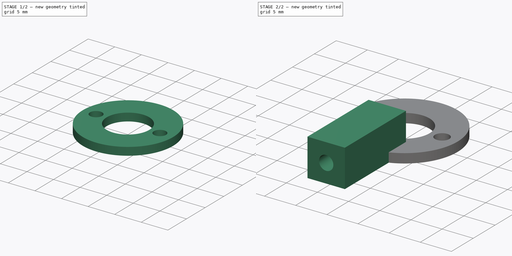
[diagram: build sequence overview — one tinted view per stage of 2, left to right]
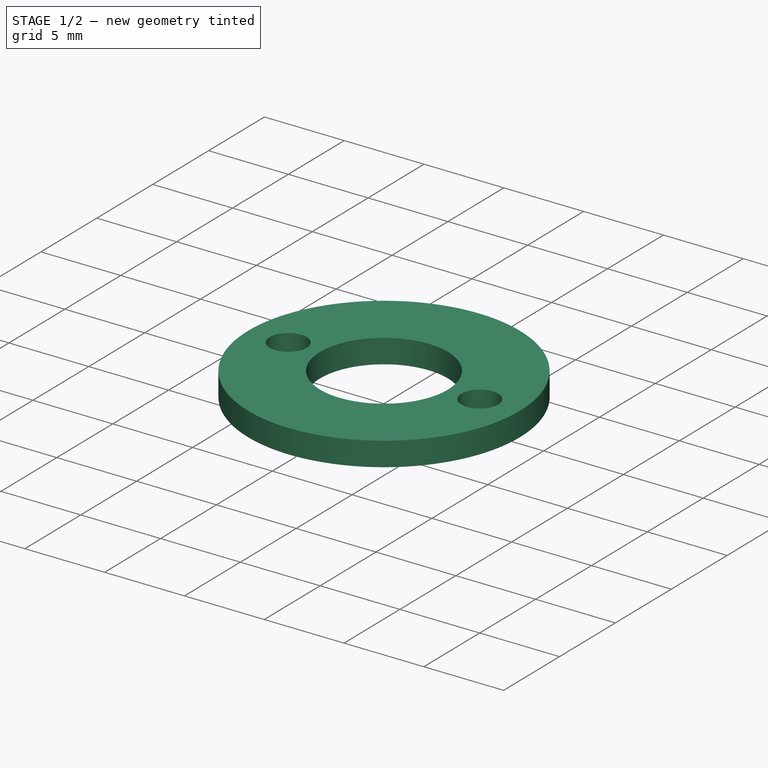
[diagram: stage 1 of 2 — iso view after this stage's code; geometry added in this stage tinted green]
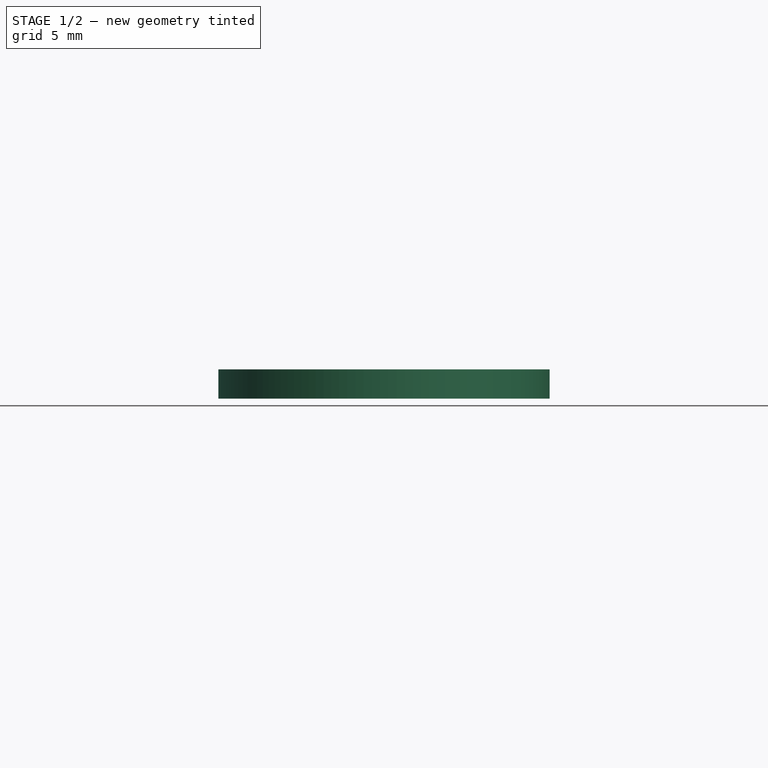
[diagram: stage 1 of 2 — front view after this stage's code; geometry added in this stage tinted green]
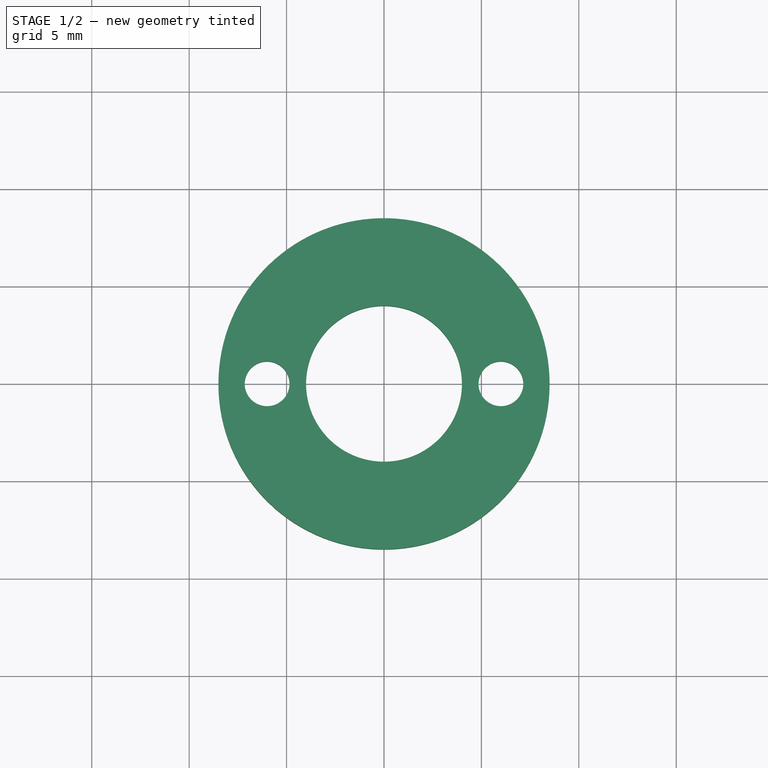
[diagram: stage 1 of 2 — top view after this stage's code; geometry added in this stage tinted green]
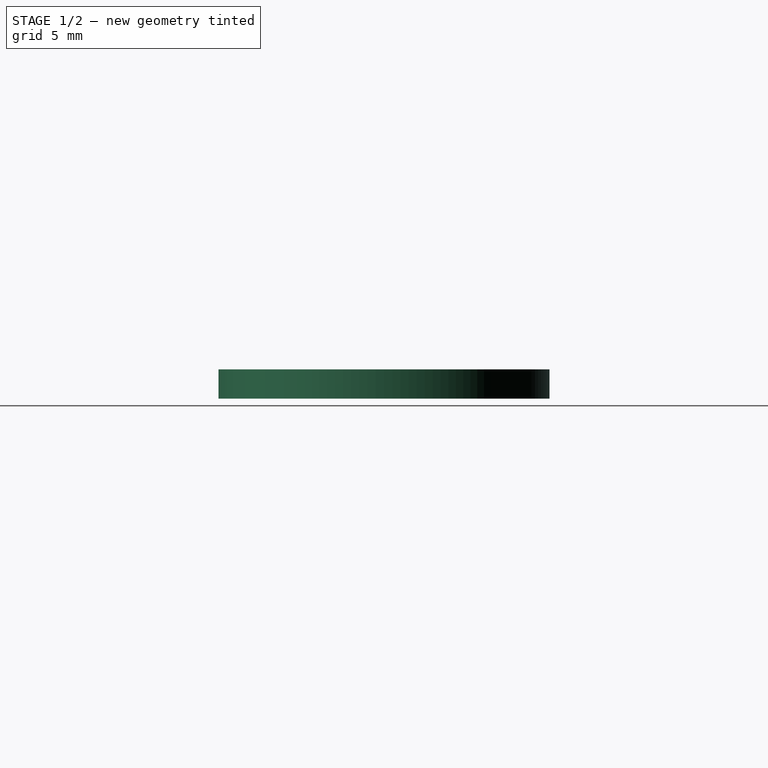
[diagram: stage 1 of 2 — right view after this stage's code; geometry added in this stage tinted green]
FCSTD DOCUMENT  (FreeCAD 0.16R5165 (Git))
Label: armmount
License: All rights reserved
LicenseURL: http://en.wikipedia.org/wiki/All_rights_reserved
objects: Sketcher::SketchObject×4, PartDesign::Pad×2, PartDesign::Pocket×2
note: 12 computed .brp shape members not serialized (recipe doc carries the construction recipe); baked Part::Feature solids carry a one-line shape summary decoded from their .brp

FEATURE [Sketcher::SketchObject] Sketch
  sketch-geometry (1):
    g0: Circle CenterX=0 CenterY=0 CenterZ=0 NormalX=0 NormalY=0 NormalZ=1 Radius=8.5
  constraints (2):
    c: Coincident(g0,g-1)
    c: Radius(g0) = 8.5
FEATURE [PartDesign::Pad] Pad
  Length = 1.5
  Length2 = 100
  Sketch = -> Sketch
  Type = 0
FEATURE [Sketcher::SketchObject] Sketch001
  Placement = pos=(0,0,1.5) rot=(0,0,1;0rad)
  Support = -> Pad [Face3]
  sketch-geometry (3):
    g0: Circle CenterX=0 CenterY=0 CenterZ=0 NormalX=0 NormalY=0 NormalZ=1 Radius=4
    g1: Circle CenterX=-6 CenterY=0 CenterZ=0 NormalX=0 NormalY=0 NormalZ=1 Radius=1.15
    g2: Circle CenterX=6 CenterY=0 CenterZ=0 NormalX=0 NormalY=0 NormalZ=1 Radius=1.15
  constraints (8):
    c: Coincident(g0,g-1)
    c: Radius(g0) = 4
    c: Radius(g1) = 1.15
    c: PointOnObject(g1,g-1)
    c: PointOnObject(g2,g-1)
    c: Symmetric(g2,g1,g-2)
    c: DistanceX(g1,g2) = 12
    c: Equal(g1,g2)
FEATURE [PartDesign::Pocket] Pocket
  Length = 5
  Sketch = -> Sketch001
  Type = 0
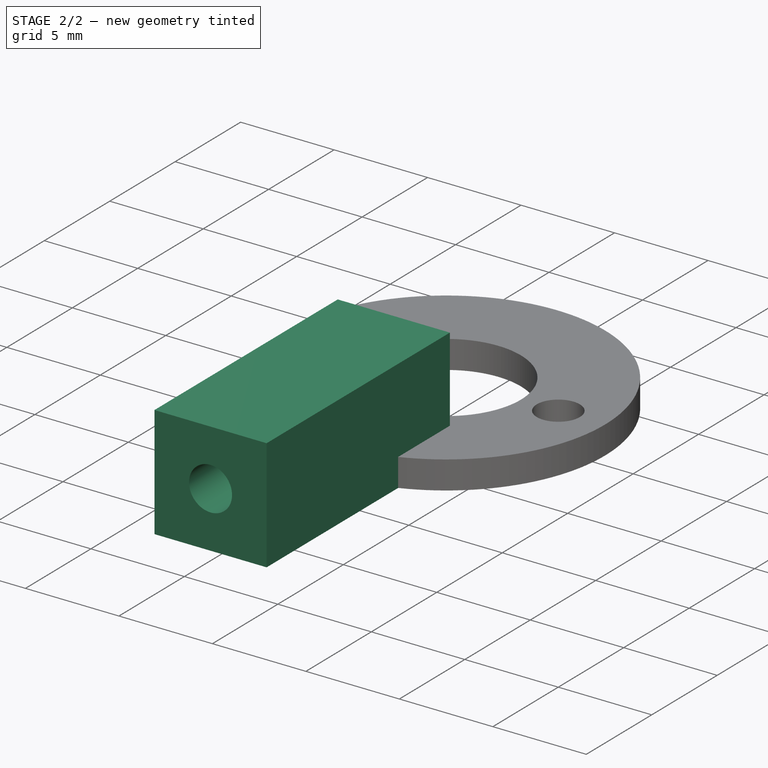
[diagram: stage 2 of 2 — iso view after this stage's code; geometry added in this stage tinted green]
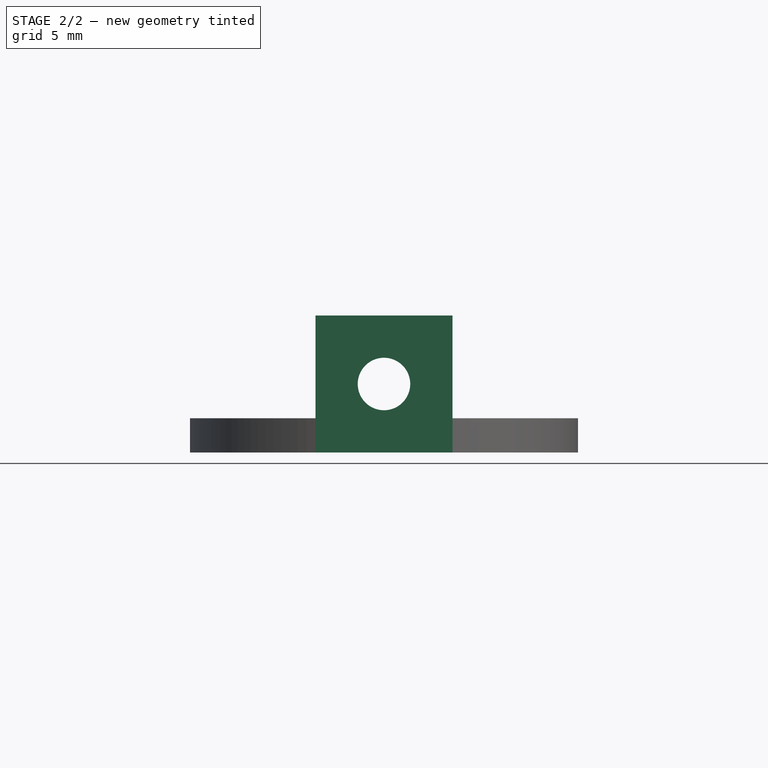
[diagram: stage 2 of 2 — front view after this stage's code; geometry added in this stage tinted green]
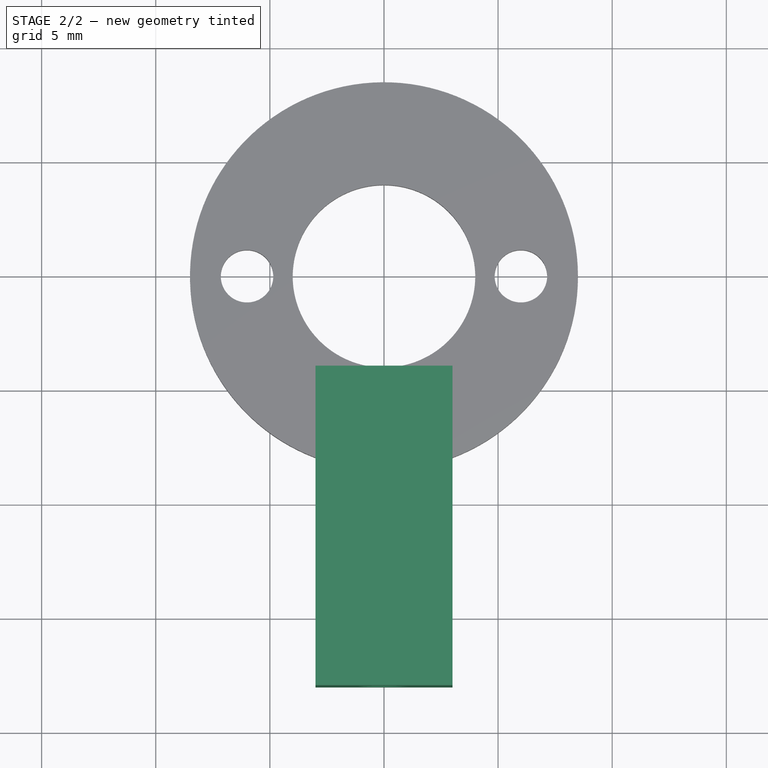
[diagram: stage 2 of 2 — top view after this stage's code; geometry added in this stage tinted green]
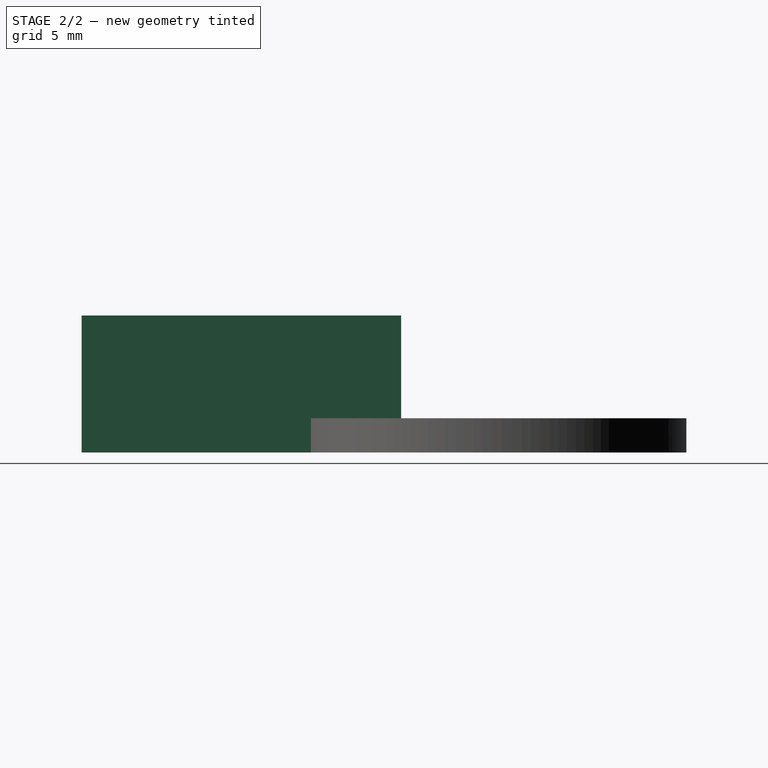
[diagram: stage 2 of 2 — right view after this stage's code; geometry added in this stage tinted green]
FEATURE [Sketcher::SketchObject] Sketch002
  ExternalGeometry = -> [Pocket]
  Placement = pos=(0,0,0) rot=(1,0,0;3.14159rad)
  Support = -> Pocket [Face2]
  sketch-geometry (4):
    g0: LineSegment StartX=-3 StartY=18 StartZ=0 EndX=3 EndY=18 EndZ=0
    g1: LineSegment StartX=3 StartY=18 StartZ=0 EndX=3 EndY=4 EndZ=0
    g2: LineSegment StartX=3 StartY=4 StartZ=0 EndX=-3 EndY=4 EndZ=0
    g3: LineSegment StartX=-3 StartY=4 StartZ=0 EndX=-3 EndY=18 EndZ=0
  constraints (12):
    c: Coincident(g0,g1)
    c: Coincident(g1,g2)
    c: Coincident(g2,g3)
    c: Coincident(g3,g0)
    c: Horizontal(g0)
    c: Horizontal(g2)
    c: Vertical(g1)
    c: Vertical(g3)
    c: DistanceY(g1) = -14
    c: DistanceX(g0) = 6
    c: Symmetric(g0,g0,g-2)
    c: Tangent(g2,g-3)
FEATURE [PartDesign::Pad] Pad001
  Length = 6
  Length2 = 100
  Reversed = true
  Sketch = -> Sketch002
  Type = 0
FEATURE [Sketcher::SketchObject] Sketch003
  ExternalGeometry = -> [Pad001]
  Placement = pos=(0,-18,0) rot=(1,0,0;1.5708rad)
  Support = -> Pad001 [Face14]
  sketch-geometry (3):
    g0: Circle CenterX=0 CenterY=3 CenterZ=0 NormalX=0 NormalY=0 NormalZ=1 Radius=1.15
    g1: LineSegment [constr] StartX=-3 StartY=6 StartZ=0 EndX=0 EndY=3 EndZ=0
    g2: LineSegment [constr] StartX=0 StartY=3 StartZ=0 EndX=3 EndY=0 EndZ=0
  constraints (7):
    c: PointOnObject(g0,g-2)
    c: Coincident(g-3,g1)
    c: Coincident(g1,g0)
    c: Coincident(g1,g2)
    c: Coincident(g2,g-4)
    c: Equal(g1,g2)
    c: Radius(g0) = 1.15
FEATURE [PartDesign::Pocket] Pocket001
  Length = 15
  Sketch = -> Sketch003
  Type = 0
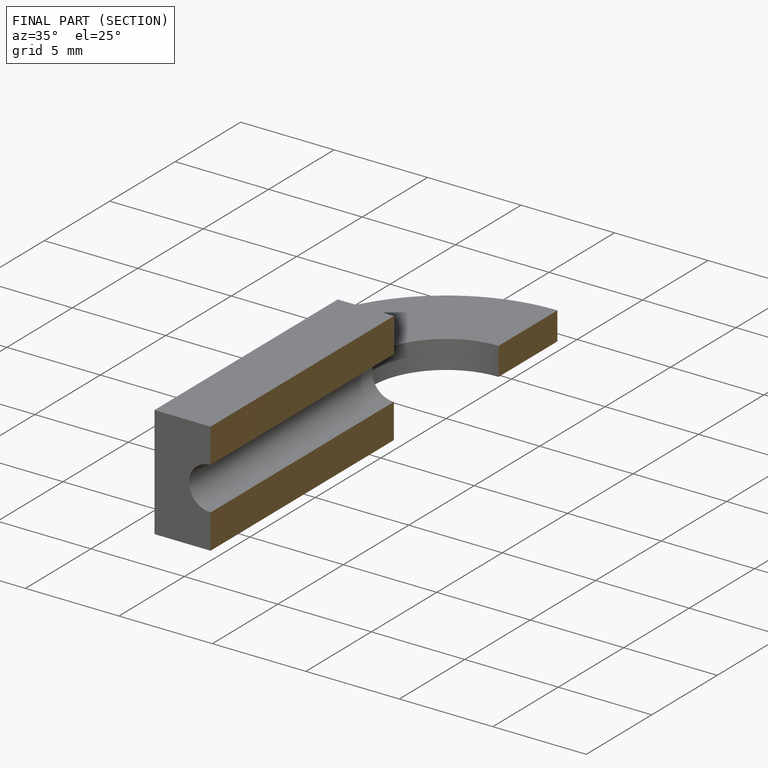
[diagram: finished part — half-section view (interior)]
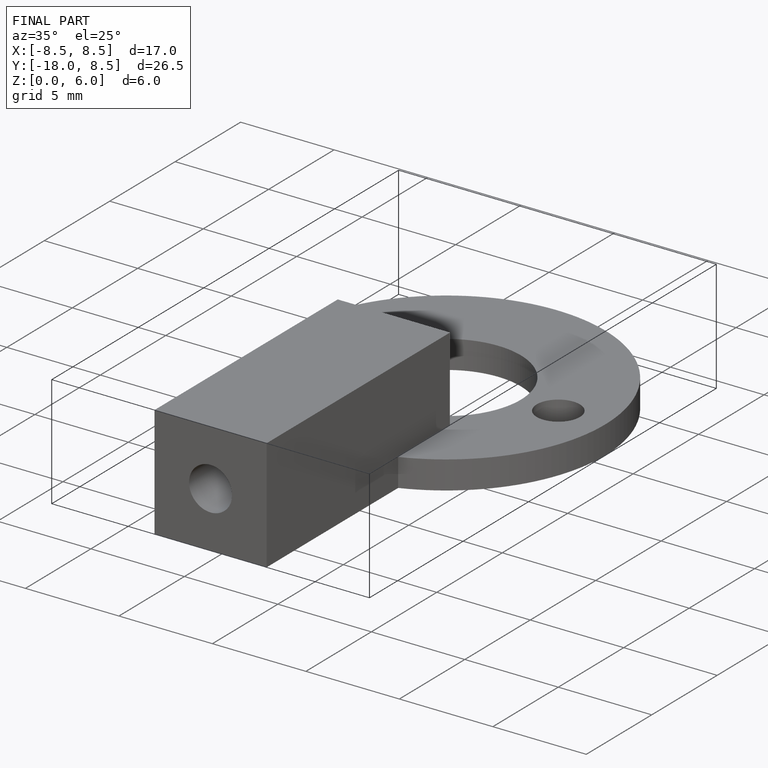
[diagram: finished part — iso view with bounding-box wireframe]
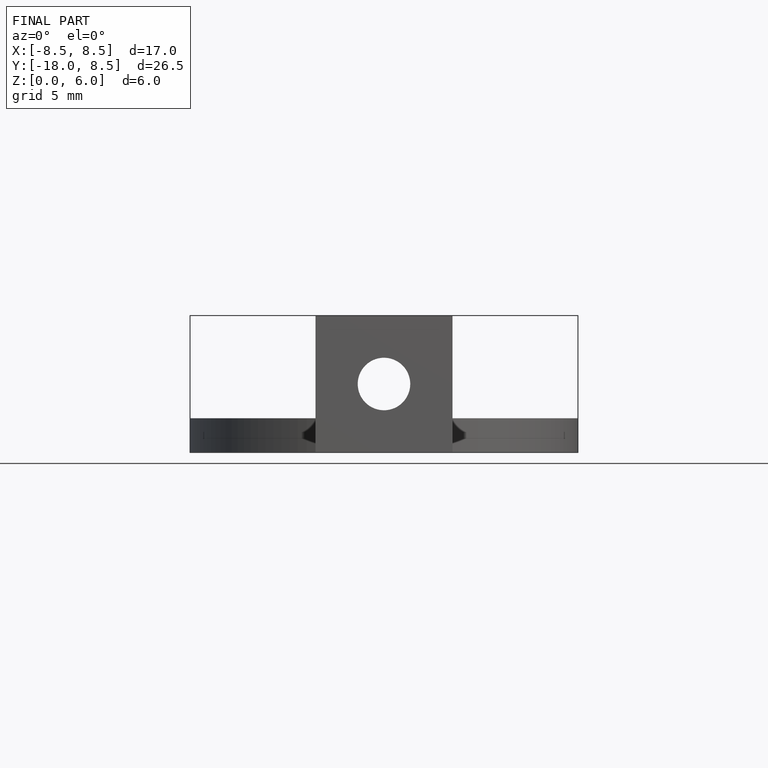
[diagram: finished part — front view with bounding-box wireframe]
